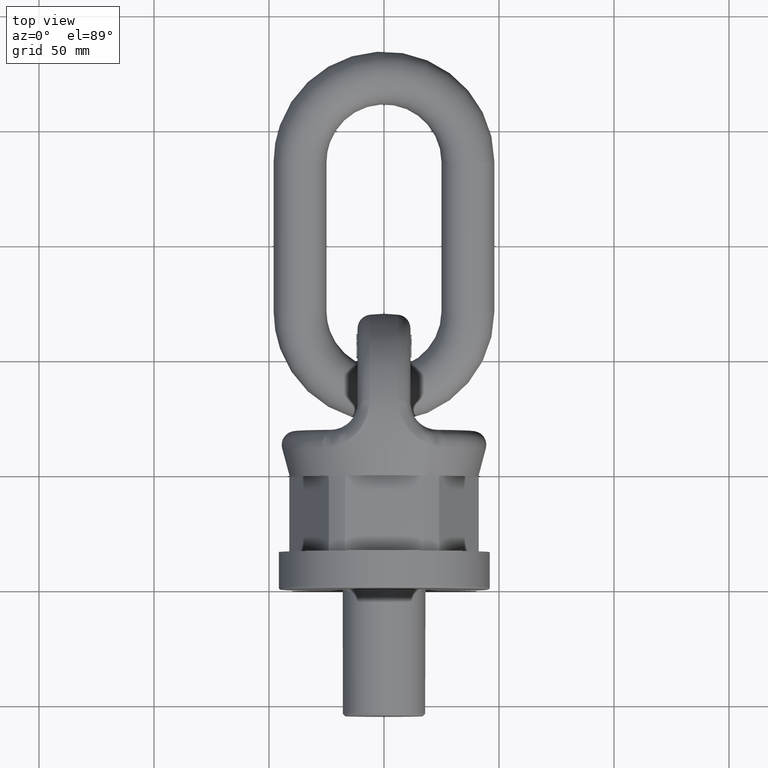
[diagram: clean part render]
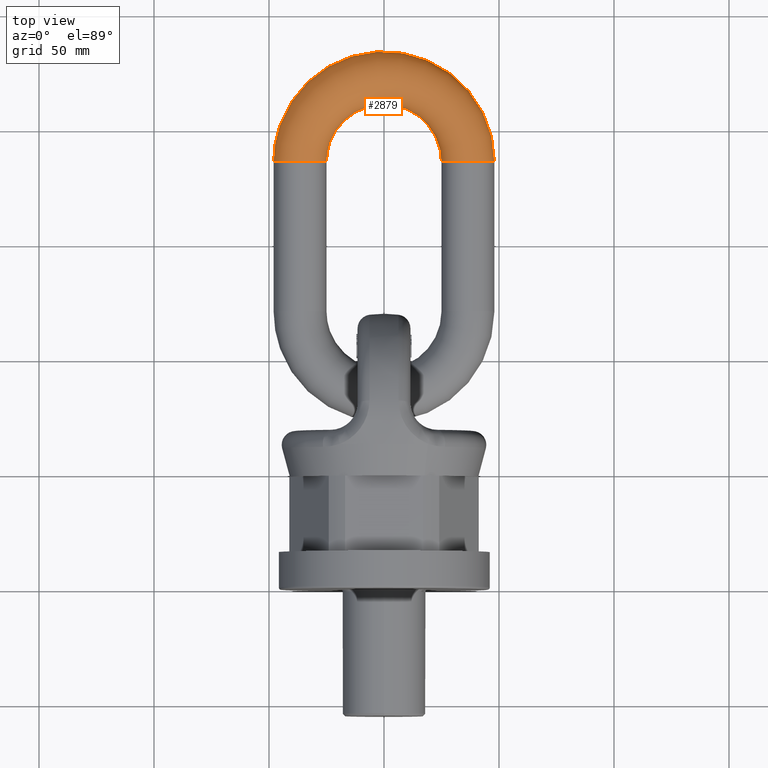
[diagram: same view with one face highlighted and labeled with its STEP entity id]
A machine part, top view. The second image highlights one B-rep face of the part: STEP entity #2879.
In plain terms, the highlighted toroidal blend (fillet) surface has major radius 36.5 mm and minor (blend) radius 11.5 mm.
Its self-contained STEP definition (entity closure, byte-faithful):
#1797=TOROIDAL_SURFACE('',#5800,36.5,11.5);
#2879=ADVANCED_FACE('',(#3055,#3056),#1797,.T.);
#3055=FACE_BOUND('',#3341,.T.);
#3056=FACE_BOUND('',#3342,.T.);
#3341=EDGE_LOOP('',(#4533));
#3342=EDGE_LOOP('',(#4534));
#4533=ORIENTED_EDGE('',*,*,#5528,.F.);
#4534=ORIENTED_EDGE('',*,*,#5526,.T.);
#4930=VERTEX_POINT('',#9740);
#4932=VERTEX_POINT('',#9746);
#5526=EDGE_CURVE('',#4930,#4930,#5592,.T.);
#5528=EDGE_CURVE('',#4932,#4932,#5594,.T.);
#5592=CIRCLE('',#5794,11.5);
#5594=CIRCLE('',#5798,11.5);
#5794=AXIS2_PLACEMENT_3D('',#9739,#6547,#6548);
#5798=AXIS2_PLACEMENT_3D('',#9745,#6555,#6556);
#5800=AXIS2_PLACEMENT_3D('',#9748,#6559,#6560);
#6547=DIRECTION('',(-1.22927163369489E-15,1.,0.));
#6548=DIRECTION('',(-1.,-2.41352831440251E-15,0.));
#6555=DIRECTION('',(2.18628534080031E-16,-1.,0.));
#6556=DIRECTION('',(1.,0.,0.));
#6559=DIRECTION('',(0.,0.,1.));
#6560=DIRECTION('',(1.,0.,0.));
#9739=CARTESIAN_POINT('',(-36.5,186.,0.));
#9740=CARTESIAN_POINT('',(-48.,186.,0.));
#9745=CARTESIAN_POINT('',(36.5,186.,0.));
#9746=CARTESIAN_POINT('',(48.,186.,0.));
#9748=CARTESIAN_POINT('',(2.77555756156289E-14,186.,0.));